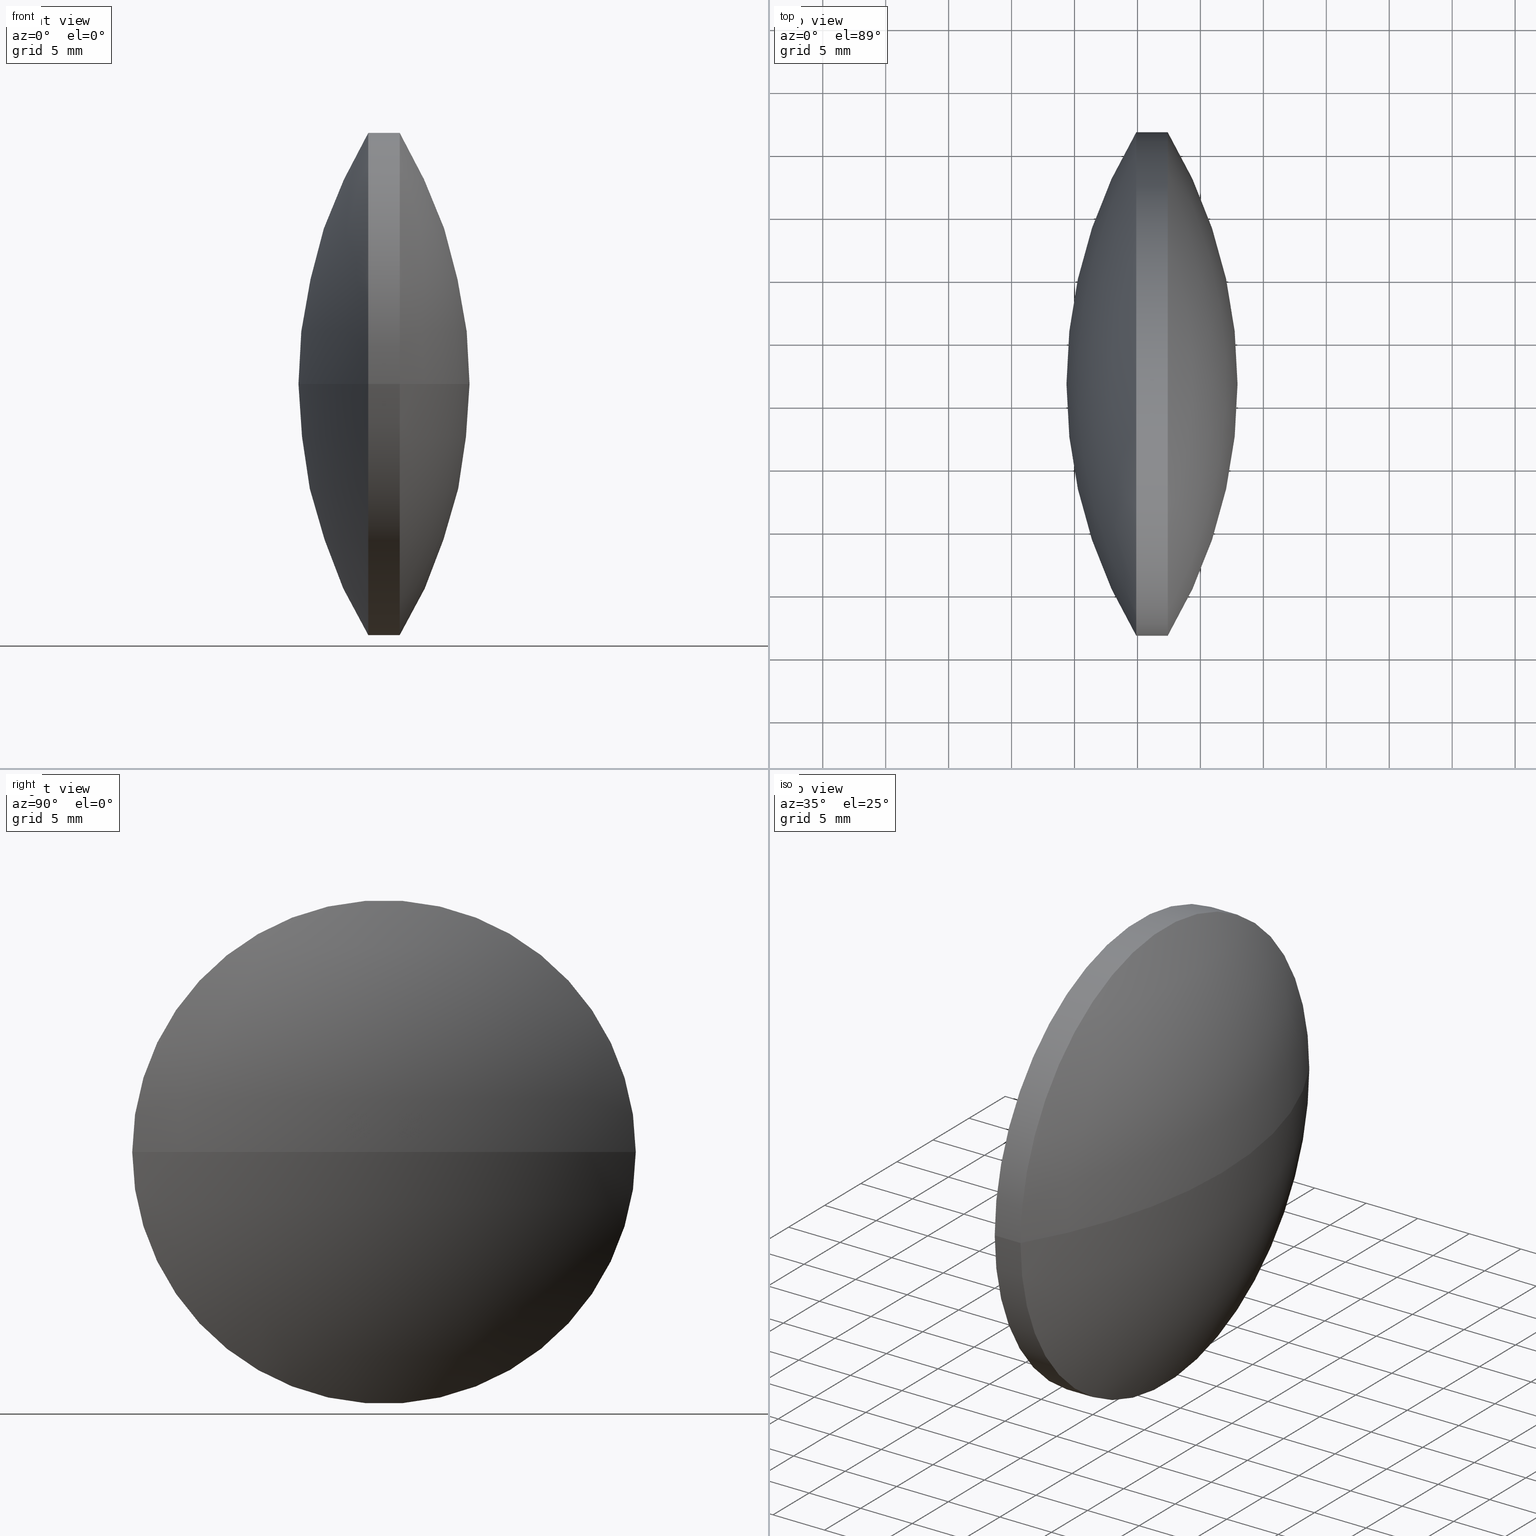
[diagram: canonical four-view strip — front | top / right | iso, engineering-drawing reading convention]
A machine part, canonical four-view strip (front | top / right | iso — engineering-drawing reading convention). The complete STEP part file that produces these views, byte-faithful:
ISO-10303-21;
HEADER;
FILE_DESCRIPTION (( 'STEP AP203' ),
    '1' );
FILE_NAME ('110018.STEP',
    '2019-06-25T06:10:27',
    ( '' ),
    ( '' ),
    'SwSTEP 2.0',
    'SolidWorks 2016',
    '' );
FILE_SCHEMA (( 'CONFIG_CONTROL_DESIGN' ));
ENDSEC;

DATA;
#1 = CIRCLE ( 'NONE', #292, 19.99999999999994700 ) ;
#2 = AXIS2_PLACEMENT_3D ( 'NONE', #222, #244, #138 ) ;
#3 = APPROVAL_STATUS ( 'not_yet_approved' ) ;
#4 = ADVANCED_FACE ( 'NONE', ( #157 ), #17, .T. ) ;
#5 = DATE_TIME_ROLE ( 'classification_date' ) ;
#6 = FACE_OUTER_BOUND ( 'NONE', #146, .T. ) ;
#7 = ADVANCED_FACE ( 'NONE', ( #229 ), #43, .T. ) ;
#8 = APPROVAL_PERSON_ORGANIZATION ( #165, #175, #273 ) ;
#9 = EDGE_LOOP ( 'NONE', ( #47, #64, #109 ) ) ;
#10 = AXIS2_PLACEMENT_3D ( 'NONE', #67, #297, #136 ) ;
#11 = CC_DESIGN_DATE_AND_TIME_ASSIGNMENT ( #201, #149, ( #304 ) ) ;
#12 = CIRCLE ( 'NONE', #266, 38.84103020739382100 ) ;
#13 = PRODUCT_DEFINITION ( 'δ֪', '', #41, #38 ) ;
#14 = CALENDAR_DATE ( 2019, 25, 6 ) ;
#15 = CC_DESIGN_SECURITY_CLASSIFICATION ( #304, ( #44 ) ) ;
#16 = DIRECTION ( 'NONE',  ( -1.000000000000000000, -1.732231757631238700E-015, -0.0000000000000000000 ) ) ;
#17 = SPHERICAL_SURFACE ( 'NONE', #104, 38.84103020739382100 ) ;
#18 = PRODUCT ( '110018', '110018', '', ( #232 ) ) ;
#19 = DIRECTION ( 'NONE',  ( 1.387778780781449400E-015, -1.000000000000000000, 0.0000000000000000000 ) ) ;
#20 = PERSON_AND_ORGANIZATION ( #205, #255 ) ;
#21 = PERSON_AND_ORGANIZATION_ROLE ( 'creator' ) ;
#22 = PERSON_AND_ORGANIZATION ( #205, #255 ) ;
#23 = CARTESIAN_POINT ( 'NONE',  ( 104.1086056582156200, 56.56080791052685400, 0.0000000000000000000 ) ) ;
#24 = DIRECTION ( 'NONE',  ( 1.000000000000000000, 0.0000000000000000000, 0.0000000000000000000 ) ) ;
#25 = CALENDAR_DATE ( 2019, 25, 6 ) ;
#26 = AXIS2_PLACEMENT_3D ( 'NONE', #164, #147, #50 ) ;
#27 = PERSON_AND_ORGANIZATION_ROLE ( 'design_supplier' ) ;
#28 = ADVANCED_BREP_SHAPE_REPRESENTATION ( '110018', ( #78, #223 ), #129 ) ;
#29 = APPROVAL_DATE_TIME ( #94, #156 ) ;
#30 = COORDINATED_UNIVERSAL_TIME_OFFSET ( 8, 0, .AHEAD. ) ;
#31 = MECHANICAL_CONTEXT ( 'NONE', #206, 'mechanical' ) ;
#32 = APPROVAL_ROLE ( '' ) ;
#33 = CIRCLE ( 'NONE', #2, 38.84103020739405600 ) ;
#34 = APPROVAL_DATE_TIME ( #155, #181 ) ;
#35 = CIRCLE ( 'NONE', #261, 38.84103020739382100 ) ;
#36 = EDGE_CURVE ( 'NONE', #283, #236, #1, .T. ) ;
#37 = CALENDAR_DATE ( 2019, 25, 6 ) ;
#38 = DESIGN_CONTEXT ( 'detailed design', #186, 'design' ) ;
#39 = FACE_OUTER_BOUND ( 'NONE', #9, .T. ) ;
#40 = LOCAL_TIME ( 14, 10, 27.00000000000000000, #30 ) ;
#41 = PRODUCT_DEFINITION_FORMATION_WITH_SPECIFIED_SOURCE ( '�κ�', '', #18, .NOT_KNOWN. ) ;
#42 = CARTESIAN_POINT ( 'NONE',  ( 104.1086056582155700, 96.56080791052674800, 2.449293598294700200E-015 ) ) ;
#43 = CYLINDRICAL_SURFACE ( 'NONE', #84, 19.99999999999994700 ) ;
#44 = PRODUCT_DEFINITION_FORMATION_WITH_SPECIFIED_SOURCE ( '�κ�', '', #267, .NOT_KNOWN. ) ;
#45 = EDGE_CURVE ( 'NONE', #241, #53, #33, .T. ) ;
#46 = CARTESIAN_POINT ( 'NONE',  ( 134.9046358656097800, 56.56080791052689700, -2.449293598294701800E-015 ) ) ;
#47 = ORIENTED_EDGE ( 'NONE', *, *, #45, .F. ) ;
#48 = APPLICATION_PROTOCOL_DEFINITION ( 'international standard', 'config_control_design', 1994, #186 ) ;
#49 = APPROVAL_PERSON_ORGANIZATION ( #250, #135, #32 ) ;
#50 = DIRECTION ( 'NONE',  ( -1.786485545531768000E-015, 1.000000000000000000, 0.0000000000000000000 ) ) ;
#51 = DIRECTION ( 'NONE',  ( -1.000000000000000000, -1.732231757631238700E-015, -0.0000000000000000000 ) ) ;
#52 = UNCERTAINTY_MEASURE_WITH_UNIT (LENGTH_MEASURE( 1.000000000000000100E-005 ), #305, 'distance_accuracy_value', 'NONE');
#53 = VERTEX_POINT ( 'NONE', #295 ) ;
#54 = EDGE_CURVE ( 'NONE', #53, #176, #151, .T. ) ;
#55 = APPLICATION_PROTOCOL_DEFINITION ( 'international standard', 'config_control_design', 1994, #103 ) ;
#56 = CC_DESIGN_PERSON_AND_ORGANIZATION_ASSIGNMENT ( #74, #278, ( #44 ) ) ;
#57 = COORDINATED_UNIVERSAL_TIME_OFFSET ( 8, 0, .AHEAD. ) ;
#58 = ORIENTED_EDGE ( 'NONE', *, *, #36, .T. ) ;
#59 = SECURITY_CLASSIFICATION_LEVEL ( 'unclassified' ) ;
#60 = COORDINATED_UNIVERSAL_TIME_OFFSET ( 8, 0, .AHEAD. ) ;
#61 = AXIS2_PLACEMENT_3D ( 'NONE', #96, #166, #71 ) ;
#62 = ORIENTED_EDGE ( 'NONE', *, *, #153, .F. ) ;
#63 = COORDINATED_UNIVERSAL_TIME_OFFSET ( 8, 0, .AHEAD. ) ;
#64 = ORIENTED_EDGE ( 'NONE', *, *, #153, .T. ) ;
#65 = PERSON_AND_ORGANIZATION ( #205, #255 ) ;
#66 = PRODUCT_RELATED_PRODUCT_CATEGORY ( 'detail', '', ( #18 ) ) ;
#67 = CARTESIAN_POINT ( 'NONE',  ( 137.4046358656097500, 76.56080791052686200, 0.0000000000000000000 ) ) ;
#68 = VECTOR ( 'NONE', #268, 1000.000000000000000 ) ;
#69 = CARTESIAN_POINT ( 'NONE',  ( 104.1086056582155900, 76.56080791052680500, 0.0000000000000000000 ) ) ;
#70 = DIRECTION ( 'NONE',  ( -0.0000000000000000000, 0.0000000000000000000, -1.000000000000000000 ) ) ;
#71 = DIRECTION ( 'NONE',  ( -1.429188436425423700E-015, 1.000000000000000000, 0.0000000000000000000 ) ) ;
#72 = CIRCLE ( 'NONE', #209, 19.99999999999994700 ) ;
#73 = CC_DESIGN_PERSON_AND_ORGANIZATION_ASSIGNMENT ( #303, #107, ( #284 ) ) ;
#74 = PERSON_AND_ORGANIZATION ( #205, #255 ) ;
#75 = CARTESIAN_POINT ( 'NONE',  ( 142.9496358656096500, 76.56080791052687600, 0.0000000000000000000 ) ) ;
#76 = CARTESIAN_POINT ( 'NONE',  ( 168.2006660730035600, 76.56080791052691800, 0.0000000000000000000 ) ) ;
#77 = ORIENTED_EDGE ( 'NONE', *, *, #190, .T. ) ;
#78 = MANIFOLD_SOLID_BREP ( '��ת1', #133 ) ;
#79 = DIRECTION ( 'NONE',  ( 1.387778780781449400E-015, -1.000000000000000000, 0.0000000000000000000 ) ) ;
#80 = APPROVAL_STATUS ( 'not_yet_approved' ) ;
#81 = PERSON_AND_ORGANIZATION ( #205, #255 ) ;
#82 = APPROVAL_DATE_TIME ( #161, #296 ) ;
#83 = APPROVAL_ROLE ( '' ) ;
#84 = AXIS2_PLACEMENT_3D ( 'NONE', #198, #93, #19 ) ;
#85 = ORIENTED_EDGE ( 'NONE', *, *, #36, .F. ) ;
#86 = COORDINATED_UNIVERSAL_TIME_OFFSET ( 8, 0, .AHEAD. ) ;
#87 = DATE_AND_TIME ( #134, #216 ) ;
#88 = CC_DESIGN_PERSON_AND_ORGANIZATION_ASSIGNMENT ( #285, #27, ( #44 ) ) ;
#89 = FACE_OUTER_BOUND ( 'NONE', #215, .T. ) ;
#90 = COORDINATED_UNIVERSAL_TIME_OFFSET ( 8, 0, .AHEAD. ) ;
#91 = CARTESIAN_POINT ( 'NONE',  ( 168.2006660730035600, 76.56080791052691800, 0.0000000000000000000 ) ) ;
#92 = DIRECTION ( 'NONE',  ( -0.0000000000000000000, 0.0000000000000000000, -1.000000000000000000 ) ) ;
#93 = DIRECTION ( 'NONE',  ( -1.000000000000000000, -1.732231757631238700E-015, -0.0000000000000000000 ) ) ;
#94 = DATE_AND_TIME ( #227, #154 ) ;
#95 = COORDINATED_UNIVERSAL_TIME_OFFSET ( 8, 0, .AHEAD. ) ;
#96 = CARTESIAN_POINT ( 'NONE',  ( 168.2006660730035600, 76.56080791052691800, 0.0000000000000000000 ) ) ;
#97 = DIRECTION ( 'NONE',  ( 0.0000000000000000000, 0.0000000000000000000, 1.000000000000000000 ) ) ;
#98 = CARTESIAN_POINT ( 'NONE',  ( 0.0000000000000000000, 0.0000000000000000000, 0.0000000000000000000 ) ) ;
#99 = SPHERICAL_SURFACE ( 'NONE', #61, 38.84103020739382100 ) ;
#100 = LOCAL_TIME ( 14, 10, 27.00000000000000000, #86 ) ;
#101 = DIRECTION ( 'NONE',  ( 1.000000000000000000, 0.0000000000000000000, 0.0000000000000000000 ) ) ;
#102 = CC_DESIGN_DATE_AND_TIME_ASSIGNMENT ( #174, #193, ( #284 ) ) ;
#103 = APPLICATION_CONTEXT ( 'configuration controlled 3d designs of mechanical parts and assemblies' ) ;
#104 = AXIS2_PLACEMENT_3D ( 'NONE', #91, #92, #224 ) ;
#105 = PERSON_AND_ORGANIZATION ( #205, #255 ) ;
#106 = ADVANCED_FACE ( 'NONE', ( #39 ), #239, .T. ) ;
#107 = PERSON_AND_ORGANIZATION_ROLE ( 'creator' ) ;
#108 = CC_DESIGN_APPROVAL ( #296, ( #284 ) ) ;
#109 = ORIENTED_EDGE ( 'NONE', *, *, #54, .F. ) ;
#110 = DATE_AND_TIME ( #196, #40 ) ;
#111 = EDGE_CURVE ( 'NONE', #53, #236, #128, .T. ) ;
#112 = ORIENTED_EDGE ( 'NONE', *, *, #248, .F. ) ;
#113 = EDGE_LOOP ( 'NONE', ( #272, #58, #179 ) ) ;
#114 = PERSON_AND_ORGANIZATION ( #205, #255 ) ;
#115 = DIRECTION ( 'NONE',  ( 1.387778780781449400E-015, -1.000000000000000000, 0.0000000000000000000 ) ) ;
#116 = CARTESIAN_POINT ( 'NONE',  ( 134.9046358656097500, 76.56080791052686200, 0.0000000000000000000 ) ) ;
#117 = CC_DESIGN_APPROVAL ( #135, ( #44 ) ) ;
#118 = CARTESIAN_POINT ( 'NONE',  ( 104.1086056582155900, 76.56080791052680500, 0.0000000000000000000 ) ) ;
#119 = DIRECTION ( 'NONE',  ( -1.786485545531768000E-015, 1.000000000000000000, 0.0000000000000000000 ) ) ;
#120 = CC_DESIGN_DATE_AND_TIME_ASSIGNMENT ( #290, #5, ( #233 ) ) ;
#121 = PERSON_AND_ORGANIZATION_ROLE ( 'classification_officer' ) ;
#122 = CC_DESIGN_APPROVAL ( #181, ( #304 ) ) ;
#123 = SHAPE_DEFINITION_REPRESENTATION ( #276, #28 ) ;
#124 = DIRECTION ( 'NONE',  ( -2.121372077364490100E-031, 1.224646799147353200E-016, -1.000000000000000000 ) ) ;
#125 = APPROVAL_DATE_TIME ( #87, #256 ) ;
#126 = APPROVAL_ROLE ( '' ) ;
#127 = CARTESIAN_POINT ( 'NONE',  ( 134.9046358656097200, 96.56080791052681900, 0.0000000000000000000 ) ) ;
#128 = LINE ( 'NONE', #42, #68 ) ;
#129 =( GEOMETRIC_REPRESENTATION_CONTEXT ( 3 ) GLOBAL_UNCERTAINTY_ASSIGNED_CONTEXT ( ( #52 ) ) GLOBAL_UNIT_ASSIGNED_CONTEXT ( ( #305, #167, #271 ) ) REPRESENTATION_CONTEXT ( 'NONE', 'WORKASPACE' ) );
#130 = APPROVAL_STATUS ( 'not_yet_approved' ) ;
#131 = APPROVAL_DATE_TIME ( #212, #135 ) ;
#132 = ORIENTED_EDGE ( 'NONE', *, *, #248, .T. ) ;
#133 = CLOSED_SHELL ( 'NONE', ( #170, #106, #4, #211, #282, #7 ) ) ;
#134 = CALENDAR_DATE ( 2019, 25, 6 ) ;
#135 = APPROVAL ( #130, 'δָ��' ) ;
#136 = DIRECTION ( 'NONE',  ( 1.387778780781449400E-015, -1.000000000000000000, 0.0000000000000000000 ) ) ;
#137 = ORIENTED_EDGE ( 'NONE', *, *, #45, .T. ) ;
#138 = DIRECTION ( 'NONE',  ( 1.000000000000000000, 0.0000000000000000000, 0.0000000000000000000 ) ) ;
#139 = CARTESIAN_POINT ( 'NONE',  ( 137.4046358656097500, 76.56080791052686200, 0.0000000000000000000 ) ) ;
#140 = APPROVAL_PERSON_ORGANIZATION ( #210, #156, #126 ) ;
#141 = APPLICATION_PROTOCOL_DEFINITION ( 'international standard', 'config_control_design', 1994, #270 ) ;
#142 = APPROVAL_PERSON_ORGANIZATION ( #22, #296, #83 ) ;
#143 = CARTESIAN_POINT ( 'NONE',  ( 134.9046358656097500, 76.56080791052686200, 0.0000000000000000000 ) ) ;
#144 = CC_DESIGN_PERSON_AND_ORGANIZATION_ASSIGNMENT ( #195, #298, ( #18 ) ) ;
#145 = PERSON_AND_ORGANIZATION_ROLE ( 'design_supplier' ) ;
#146 = EDGE_LOOP ( 'NONE', ( #62, #137, #220 ) ) ;
#147 = DIRECTION ( 'NONE',  ( -0.0000000000000000000, 0.0000000000000000000, -1.000000000000000000 ) ) ;
#148 = LOCAL_TIME ( 14, 10, 27.00000000000000000, #60 ) ;
#149 = DATE_TIME_ROLE ( 'classification_date' ) ;
#150 = LOCAL_TIME ( 14, 10, 27.00000000000000000, #208 ) ;
#151 = CIRCLE ( 'NONE', #10, 19.99999999999994700 ) ;
#152 = DESIGN_CONTEXT ( 'detailed design', #103, 'design' ) ;
#153 = EDGE_CURVE ( 'NONE', #241, #176, #280, .T. ) ;
#154 = LOCAL_TIME ( 14, 10, 27.00000000000000000, #57 ) ;
#155 = DATE_AND_TIME ( #221, #148 ) ;
#156 = APPROVAL ( #162, 'δָ��' ) ;
#157 = FACE_OUTER_BOUND ( 'NONE', #189, .T. ) ;
#158 = COORDINATED_UNIVERSAL_TIME_OFFSET ( 8, 0, .AHEAD. ) ;
#159 = CC_DESIGN_SECURITY_CLASSIFICATION ( #233, ( #41 ) ) ;
#160 = SPHERICAL_SURFACE ( 'NONE', #26, 38.84103020739407000 ) ;
#161 = DATE_AND_TIME ( #25, #257 ) ;
#162 = APPROVAL_STATUS ( 'not_yet_approved' ) ;
#163 = CARTESIAN_POINT ( 'NONE',  ( 168.2006660730035600, 76.56080791052691800, 0.0000000000000000000 ) ) ;
#164 = CARTESIAN_POINT ( 'NONE',  ( 104.1086056582155900, 76.56080791052680500, 0.0000000000000000000 ) ) ;
#165 = PERSON_AND_ORGANIZATION ( #205, #255 ) ;
#166 = DIRECTION ( 'NONE',  ( -0.0000000000000000000, 0.0000000000000000000, -1.000000000000000000 ) ) ;
#167 =( NAMED_UNIT ( * ) PLANE_ANGLE_UNIT ( ) SI_UNIT ( $, .RADIAN. ) );
#168 = EDGE_CURVE ( 'NONE', #176, #53, #72, .T. ) ;
#169 = EDGE_LOOP ( 'NONE', ( #199, #294, #132, #289 ) ) ;
#170 = ADVANCED_FACE ( 'NONE', ( #89 ), #302, .T. ) ;
#171 = APPLICATION_PROTOCOL_DEFINITION ( 'international standard', 'config_control_design', 1994, #206 ) ;
#172 = VECTOR ( 'NONE', #251, 1000.000000000000000 ) ;
#173 = CC_DESIGN_APPROVAL ( #156, ( #13 ) ) ;
#174 = DATE_AND_TIME ( #14, #100 ) ;
#175 = APPROVAL ( #228, 'δָ��' ) ;
#176 = VERTEX_POINT ( 'NONE', #245 ) ;
#177 = ORIENTED_EDGE ( 'NONE', *, *, #254, .T. ) ;
#178 = APPROVAL_PERSON_ORGANIZATION ( #258, #181, #253 ) ;
#179 = ORIENTED_EDGE ( 'NONE', *, *, #287, .T. ) ;
#180 = DIRECTION ( 'NONE',  ( 0.0000000000000000000, 1.000000000000000000, 1.224646799147353500E-016 ) ) ;
#181 = APPROVAL ( #80, 'δָ��' ) ;
#182 = DATE_TIME_ROLE ( 'creation_date' ) ;
#183 = CARTESIAN_POINT ( 'NONE',  ( 0.0000000000000000000, 0.0000000000000000000, 0.0000000000000000000 ) ) ;
#184 = LOCAL_TIME ( 14, 10, 27.00000000000000000, #269 ) ;
#185 = AXIS2_PLACEMENT_3D ( 'NONE', #69, #246, #180 ) ;
#186 = APPLICATION_CONTEXT ( 'configuration controlled 3d designs of mechanical parts and assemblies' ) ;
#187 = CC_DESIGN_APPROVAL ( #175, ( #41 ) ) ;
#188 = DIRECTION ( 'NONE',  ( 1.000000000000000000, 0.0000000000000000000, 0.0000000000000000000 ) ) ;
#189 = EDGE_LOOP ( 'NONE', ( #77, #177, #207 ) ) ;
#190 = EDGE_CURVE ( 'NONE', #236, #283, #263, .T. ) ;
#191 = ORIENTED_EDGE ( 'NONE', *, *, #111, .T. ) ;
#192 = PERSON_AND_ORGANIZATION ( #205, #255 ) ;
#193 = DATE_TIME_ROLE ( 'creation_date' ) ;
#194 = ORIENTED_EDGE ( 'NONE', *, *, #168, .T. ) ;
#195 = PERSON_AND_ORGANIZATION ( #205, #255 ) ;
#196 = CALENDAR_DATE ( 2019, 25, 6 ) ;
#197 = CC_DESIGN_PERSON_AND_ORGANIZATION_ASSIGNMENT ( #81, #21, ( #13 ) ) ;
#198 = CARTESIAN_POINT ( 'NONE',  ( 104.1086056582155900, 76.56080791052680500, 0.0000000000000000000 ) ) ;
#199 = ORIENTED_EDGE ( 'NONE', *, *, #111, .F. ) ;
#200 = CC_DESIGN_PERSON_AND_ORGANIZATION_ASSIGNMENT ( #114, #226, ( #41 ) ) ;
#201 = DATE_AND_TIME ( #237, #242 ) ;
#202 = CARTESIAN_POINT ( 'NONE',  ( 104.1086056582155900, 76.56080791052680500, 0.0000000000000000000 ) ) ;
#203 = AXIS2_PLACEMENT_3D ( 'NONE', #118, #70, #119 ) ;
#204 = APPROVAL_DATE_TIME ( #110, #175 ) ;
#205 = PERSON ( 'δָ��', 'δָ��', 'δָ��', ('δָ��'), ('δָ��'), ('δָ��') ) ;
#206 = APPLICATION_CONTEXT ( 'configuration controlled 3d designs of mechanical parts and assemblies' ) ;
#207 = ORIENTED_EDGE ( 'NONE', *, *, #287, .F. ) ;
#208 = COORDINATED_UNIVERSAL_TIME_OFFSET ( 8, 0, .AHEAD. ) ;
#209 = AXIS2_PLACEMENT_3D ( 'NONE', #139, #16, #115 ) ;
#210 = PERSON_AND_ORGANIZATION ( #205, #255 ) ;
#211 = ADVANCED_FACE ( 'NONE', ( #218 ), #99, .T. ) ;
#212 = DATE_AND_TIME ( #37, #184 ) ;
#213 = PERSON_AND_ORGANIZATION_ROLE ( 'classification_officer' ) ;
#214 = CC_DESIGN_DATE_AND_TIME_ASSIGNMENT ( #231, #182, ( #13 ) ) ;
#215 = EDGE_LOOP ( 'NONE', ( #194, #191, #85, #112 ) ) ;
#216 = LOCAL_TIME ( 14, 10, 27.00000000000000000, #95 ) ;
#217 = CC_DESIGN_PERSON_AND_ORGANIZATION_ASSIGNMENT ( #65, #145, ( #41 ) ) ;
#218 = FACE_OUTER_BOUND ( 'NONE', #113, .T. ) ;
#219 = AXIS2_PLACEMENT_3D ( 'NONE', #202, #291, #265 ) ;
#220 = ORIENTED_EDGE ( 'NONE', *, *, #168, .F. ) ;
#221 = CALENDAR_DATE ( 2019, 25, 6 ) ;
#222 = CARTESIAN_POINT ( 'NONE',  ( 104.1086056582155900, 76.56080791052680500, 0.0000000000000000000 ) ) ;
#223 = AXIS2_PLACEMENT_3D ( 'NONE', #98, #97, #188 ) ;
#224 = DIRECTION ( 'NONE',  ( -1.429188436425423700E-015, 1.000000000000000000, 0.0000000000000000000 ) ) ;
#225 = PERSON_AND_ORGANIZATION ( #205, #255 ) ;
#226 = PERSON_AND_ORGANIZATION_ROLE ( 'creator' ) ;
#227 = CALENDAR_DATE ( 2019, 25, 6 ) ;
#228 = APPROVAL_STATUS ( 'not_yet_approved' ) ;
#229 = FACE_OUTER_BOUND ( 'NONE', #169, .T. ) ;
#230 = AXIS2_PLACEMENT_3D ( 'NONE', #183, #252, #24 ) ;
#231 = DATE_AND_TIME ( #259, #300 ) ;
#232 = MECHANICAL_CONTEXT ( 'NONE', #270, 'mechanical' ) ;
#233 = SECURITY_CLASSIFICATION ( '', '', #249 ) ;
#234 = DIRECTION ( 'NONE',  ( -0.0000000000000000000, 0.0000000000000000000, 1.000000000000000000 ) ) ;
#235 = APPROVAL_STATUS ( 'not_yet_approved' ) ;
#236 = VERTEX_POINT ( 'NONE', #127 ) ;
#237 = CALENDAR_DATE ( 2019, 25, 6 ) ;
#238 = PRODUCT_DEFINITION_SHAPE ( 'NONE', 'NONE',  #13 ) ;
#239 = SPHERICAL_SURFACE ( 'NONE', #203, 38.84103020739407000 ) ;
#240 = CC_DESIGN_PERSON_AND_ORGANIZATION_ASSIGNMENT ( #20, #281, ( #267 ) ) ;
#241 = VERTEX_POINT ( 'NONE', #75 ) ;
#242 = LOCAL_TIME ( 14, 10, 27.00000000000000000, #90 ) ;
#243 = CC_DESIGN_PERSON_AND_ORGANIZATION_ASSIGNMENT ( #225, #121, ( #233 ) ) ;
#244 = DIRECTION ( 'NONE',  ( -0.0000000000000000000, 0.0000000000000000000, 1.000000000000000000 ) ) ;
#245 = CARTESIAN_POINT ( 'NONE',  ( 137.4046358656097800, 56.56080791052694000, -2.449293598294696300E-015 ) ) ;
#246 = DIRECTION ( 'NONE',  ( -2.121372077364490100E-031, 1.224646799147353200E-016, -1.000000000000000000 ) ) ;
#247 = LINE ( 'NONE', #23, #172 ) ;
#248 = EDGE_CURVE ( 'NONE', #176, #283, #247, .T. ) ;
#249 = SECURITY_CLASSIFICATION_LEVEL ( 'unclassified' ) ;
#250 = PERSON_AND_ORGANIZATION ( #205, #255 ) ;
#251 = DIRECTION ( 'NONE',  ( -1.000000000000000000, -1.732231757631238700E-015, -0.0000000000000000000 ) ) ;
#252 = DIRECTION ( 'NONE',  ( 0.0000000000000000000, 0.0000000000000000000, 1.000000000000000000 ) ) ;
#253 = APPROVAL_ROLE ( '' ) ;
#254 = EDGE_CURVE ( 'NONE', #283, #286, #35, .T. ) ;
#255 = ORGANIZATION ( 'δָ��', 'δָ��', '' ) ;
#256 = APPROVAL ( #235, 'δָ��' ) ;
#257 = LOCAL_TIME ( 14, 10, 27.00000000000000000, #158 ) ;
#258 = PERSON_AND_ORGANIZATION ( #205, #255 ) ;
#259 = CALENDAR_DATE ( 2019, 25, 6 ) ;
#260 = CALENDAR_DATE ( 2019, 25, 6 ) ;
#261 = AXIS2_PLACEMENT_3D ( 'NONE', #163, #124, #275 ) ;
#262 = CC_DESIGN_APPROVAL ( #256, ( #233 ) ) ;
#263 = CIRCLE ( 'NONE', #299, 19.99999999999994700 ) ;
#264 = DIRECTION ( 'NONE',  ( -1.000000000000000000, -1.732231757631238700E-015, -0.0000000000000000000 ) ) ;
#265 = DIRECTION ( 'NONE',  ( 1.387778780781449400E-015, -1.000000000000000000, 0.0000000000000000000 ) ) ;
#266 = AXIS2_PLACEMENT_3D ( 'NONE', #76, #234, #101 ) ;
#267 = PRODUCT ( '110018', '110018', '', ( #31 ) ) ;
#268 = DIRECTION ( 'NONE',  ( -1.000000000000000000, -1.732231757631238700E-015, -0.0000000000000000000 ) ) ;
#269 = COORDINATED_UNIVERSAL_TIME_OFFSET ( 8, 0, .AHEAD. ) ;
#270 = APPLICATION_CONTEXT ( 'configuration controlled 3d designs of mechanical parts and assemblies' ) ;
#271 =( NAMED_UNIT ( * ) SI_UNIT ( $, .STERADIAN. ) SOLID_ANGLE_UNIT ( ) );
#272 = ORIENTED_EDGE ( 'NONE', *, *, #254, .F. ) ;
#273 = APPROVAL_ROLE ( '' ) ;
#274 = APPROVAL_PERSON_ORGANIZATION ( #105, #256, #277 ) ;
#275 = DIRECTION ( 'NONE',  ( 0.0000000000000000000, 1.000000000000000000, 1.224646799147353200E-016 ) ) ;
#276 = PRODUCT_DEFINITION_SHAPE ( 'NONE', 'NONE',  #284 ) ;
#277 = APPROVAL_ROLE ( '' ) ;
#278 = PERSON_AND_ORGANIZATION_ROLE ( 'creator' ) ;
#279 = CC_DESIGN_PERSON_AND_ORGANIZATION_ASSIGNMENT ( #192, #213, ( #304 ) ) ;
#280 = CIRCLE ( 'NONE', #185, 38.84103020739407000 ) ;
#281 = PERSON_AND_ORGANIZATION_ROLE ( 'design_owner' ) ;
#282 = ADVANCED_FACE ( 'NONE', ( #6 ), #160, .T. ) ;
#283 = VERTEX_POINT ( 'NONE', #46 ) ;
#284 = PRODUCT_DEFINITION ( 'δ֪', '', #44, #152 ) ;
#285 = PERSON_AND_ORGANIZATION ( #205, #255 ) ;
#286 = VERTEX_POINT ( 'NONE', #301 ) ;
#287 = EDGE_CURVE ( 'NONE', #236, #286, #12, .T. ) ;
#288 = PRODUCT_RELATED_PRODUCT_CATEGORY ( 'detail', '', ( #267 ) ) ;
#289 = ORIENTED_EDGE ( 'NONE', *, *, #190, .F. ) ;
#290 = DATE_AND_TIME ( #260, #150 ) ;
#291 = DIRECTION ( 'NONE',  ( -1.000000000000000000, -1.732231757631238700E-015, -0.0000000000000000000 ) ) ;
#292 = AXIS2_PLACEMENT_3D ( 'NONE', #116, #264, #293 ) ;
#293 = DIRECTION ( 'NONE',  ( 1.387778780781449400E-015, -1.000000000000000000, 0.0000000000000000000 ) ) ;
#294 = ORIENTED_EDGE ( 'NONE', *, *, #54, .T. ) ;
#295 = CARTESIAN_POINT ( 'NONE',  ( 137.4046358656097200, 96.56080791052676200, 0.0000000000000000000 ) ) ;
#296 = APPROVAL ( #3, 'δָ��' ) ;
#297 = DIRECTION ( 'NONE',  ( -1.000000000000000000, -1.732231757631238700E-015, -0.0000000000000000000 ) ) ;
#298 = PERSON_AND_ORGANIZATION_ROLE ( 'design_owner' ) ;
#299 = AXIS2_PLACEMENT_3D ( 'NONE', #143, #51, #79 ) ;
#300 = LOCAL_TIME ( 14, 10, 27.00000000000000000, #63 ) ;
#301 = CARTESIAN_POINT ( 'NONE',  ( 129.3596358656097300, 76.56080791052684700, 0.0000000000000000000 ) ) ;
#302 = CYLINDRICAL_SURFACE ( 'NONE', #219, 19.99999999999994700 ) ;
#303 = PERSON_AND_ORGANIZATION ( #205, #255 ) ;
#304 = SECURITY_CLASSIFICATION ( '', '', #59 ) ;
#305 =( LENGTH_UNIT ( ) NAMED_UNIT ( * ) SI_UNIT ( .MILLI., .METRE. ) );
ENDSEC;
END-ISO-10303-21;
